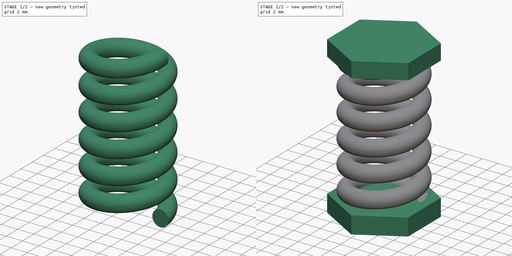
[diagram: build sequence overview — one tinted view per stage of 2, left to right]
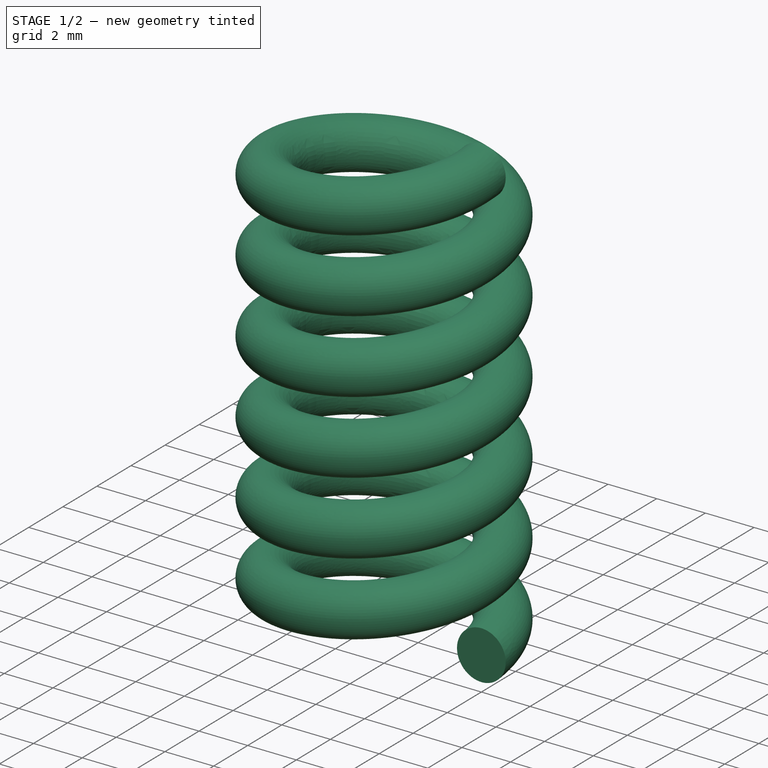
[diagram: stage 1 of 2 — iso view after this stage's code; geometry added in this stage tinted green]
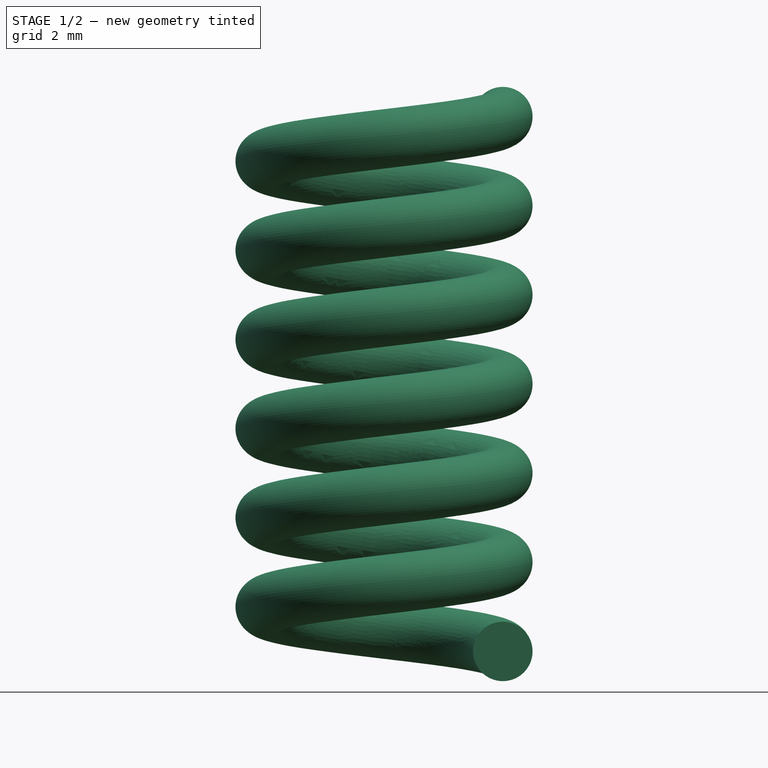
[diagram: stage 1 of 2 — front view after this stage's code; geometry added in this stage tinted green]
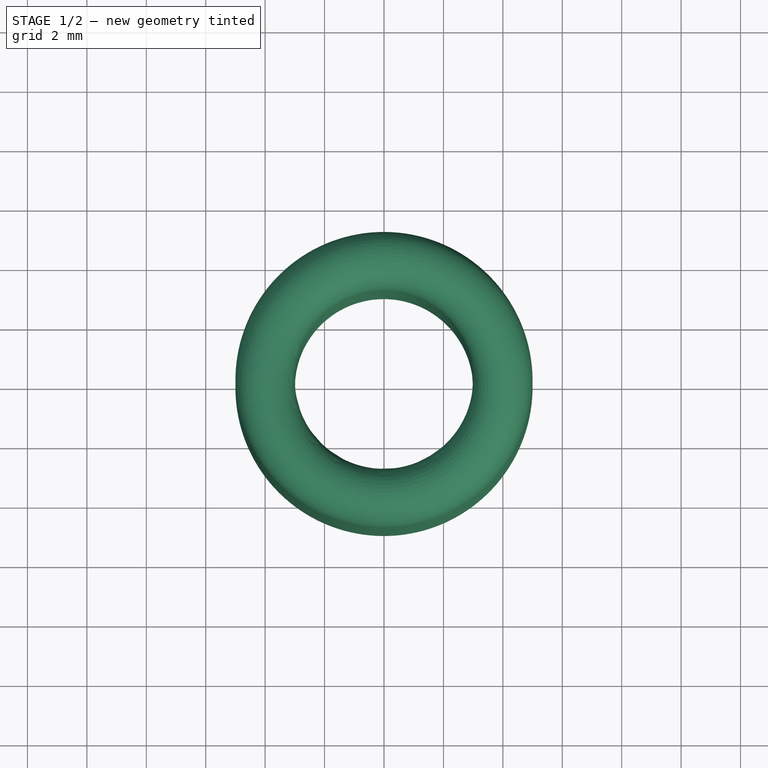
[diagram: stage 1 of 2 — top view after this stage's code; geometry added in this stage tinted green]
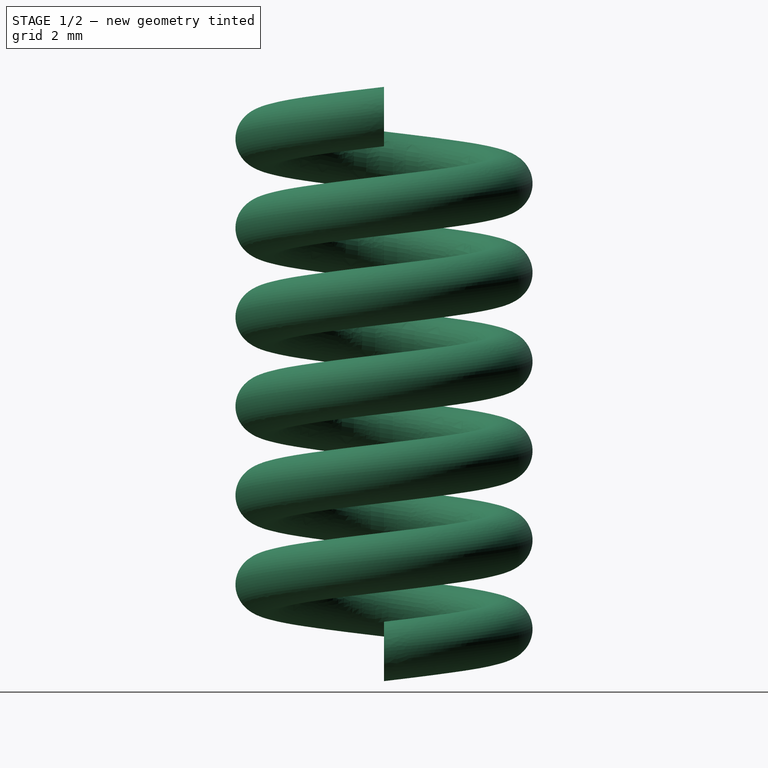
[diagram: stage 1 of 2 — right view after this stage's code; geometry added in this stage tinted green]
FCSTD DOCUMENT  (FreeCAD 0.21R33668 +26 (Git))
Label: Ressort-essai2
License: All rights reserved
LicenseURL: http://en.wikipedia.org/wiki/All_rights_reserved
objects: Sketcher::SketchObject×3, PartDesign::Pad×2, Part::Helix×1, Part::Sweep×1, PartDesign::FeatureBase×1, PartDesign::Body×1
note: 11 computed .brp shape members not serialized (recipe doc carries the construction recipe); baked Part::Feature solids carry a one-line shape summary decoded from their .brp

FEATURE [Part::Helix] Helix  label="Hélice"
  Angle = 0
  AttacherType = Attacher::AttachEngine3D
  Height = 18
  LocalCoord = 0
  Pitch = 3
  Radius = 4
  SegmentLength = 0
  Style = 1
FEATURE [Sketcher::SketchObject] Sketch  label="Profile"
  FullyConstrained = true
  MapMode = 5
  Placement = pos=(0,0,0) rot=(1,0,0;1.5708rad)
  Support = -> [XZ_Plane]
  sketch-geometry (1):
    g0: Circle CenterX=4 CenterY=0 CenterZ=0 NormalX=0 NormalY=0 NormalZ=1 AngleXU=0 Radius=1
  constraints (3):
    c: PointOnObject(g0,g-1)
    c: Radius(g0) = 1
    c: DistanceX(g-1,g0) = 4
FEATURE [Part::Sweep] Sweep  label="Hélice001"
  Frenet = true
  Sections = -> [Sketch]
  Solid = true
  Spine = -> Helix [Edge1]
  Transition = 1
FEATURE [Sketcher::SketchObject] Sketch001
  FullyConstrained = true
  MapMode = 5
  Support = -> [XY_Plane]
  sketch-geometry (7):
    g0: LineSegment StartX=5.19615 StartY=3 StartZ=0 EndX=0 EndY=6 EndZ=0
    g1: LineSegment StartX=0 StartY=6 StartZ=0 EndX=-5.19615 EndY=3 EndZ=0
    g2: LineSegment StartX=-5.19615 StartY=3 StartZ=0 EndX=-5.19615 EndY=-3 EndZ=0
    g3: LineSegment StartX=-5.19615 StartY=-3 StartZ=0 EndX=0 EndY=-6 EndZ=0
    g4: LineSegment StartX=0 StartY=-6 StartZ=0 EndX=5.19615 EndY=-3 EndZ=0
    g5: LineSegment StartX=5.19615 StartY=-3 StartZ=0 EndX=5.19615 EndY=3 EndZ=0
    g6: Circle CenterX=0 CenterY=0 CenterZ=0 NormalX=0 NormalY=0 NormalZ=1 AngleXU=0 Radius=6
  constraints (16):
    c: Coincident(g0,g1)
    c: Coincident(g1,g2)
    c: Coincident(g2,g3)
    c: Coincident(g3,g4)
    c: Coincident(g4,g5)
    c: Coincident(g5,g0)
    c: Equal(g0, g1-g5) x5
    c: PointOnObject(g0,g6)
    c: PointOnObject(g1,g6)
    c: PointOnObject(g2,g6)
    c: PointOnObject(g3,g6)
    c: PointOnObject(g4,g6)
    c: PointOnObject(g5,g6)
    c: Coincident(g6,g-1)
    c: PointOnObject(g0,g-2)
    c: DistanceY(g6,g0) = 6
FEATURE [Sketcher::SketchObject] Sketch002
  FullyConstrained = false
  MapMode = 5
  Placement = pos=(-5,-1.63078e-07,18) rot=(0,1,0;3.14159rad)
  sketch-geometry (7):
    g0: LineSegment StartX=-5.02 StartY=-6 StartZ=0 EndX=0.186153 EndY=-3.01732 EndZ=0
    g1: LineSegment StartX=0.186153 StartY=-3.01732 StartZ=0 EndX=0.206152 EndY=2.98268 EndZ=0
    g2: LineSegment StartX=0.206152 StartY=2.98268 StartZ=0 EndX=-4.98 EndY=6 EndZ=0
    g3: LineSegment StartX=-4.98 StartY=6 StartZ=0 EndX=-10.1862 EndY=3.01732 EndZ=0
    g4: LineSegment StartX=-10.1862 StartY=3.01732 StartZ=0 EndX=-10.2062 EndY=-2.98268 EndZ=0
    g5: LineSegment StartX=-10.2062 StartY=-2.98268 StartZ=0 EndX=-5.02 EndY=-6 EndZ=0
    g6: Circle CenterX=-5 CenterY=0 CenterZ=0 NormalX=0 NormalY=0 NormalZ=1 AngleXU=0 Radius=6.00003
  constraints (16):
    c: Coincident(g0,g1)
    c: Coincident(g1,g2)
    c: Coincident(g2,g3)
    c: Coincident(g3,g4)
    c: Coincident(g4,g5)
    c: Coincident(g5,g0)
    c: Equal(g0, g1-g5) x5
    c: PointOnObject(g0,g6)
    c: PointOnObject(g1,g6)
    c: PointOnObject(g2,g6)
    c: PointOnObject(g3,g6)
    c: PointOnObject(g4,g6)
    c: PointOnObject(g5,g6)
    c: PointOnObject(g6,g-1)
    c: DistanceY(g0,g6) = 6
    c: DistanceX(g6,g-1) = 5
FEATURE [PartDesign::FeatureBase] BaseFeature
  BaseFeature = -> Sweep
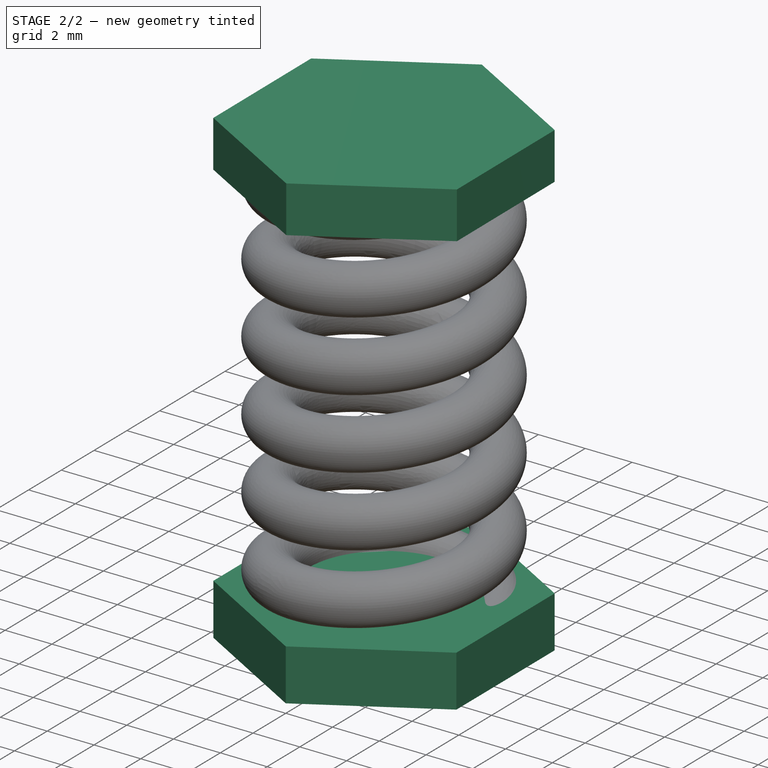
[diagram: stage 2 of 2 — iso view after this stage's code; geometry added in this stage tinted green]
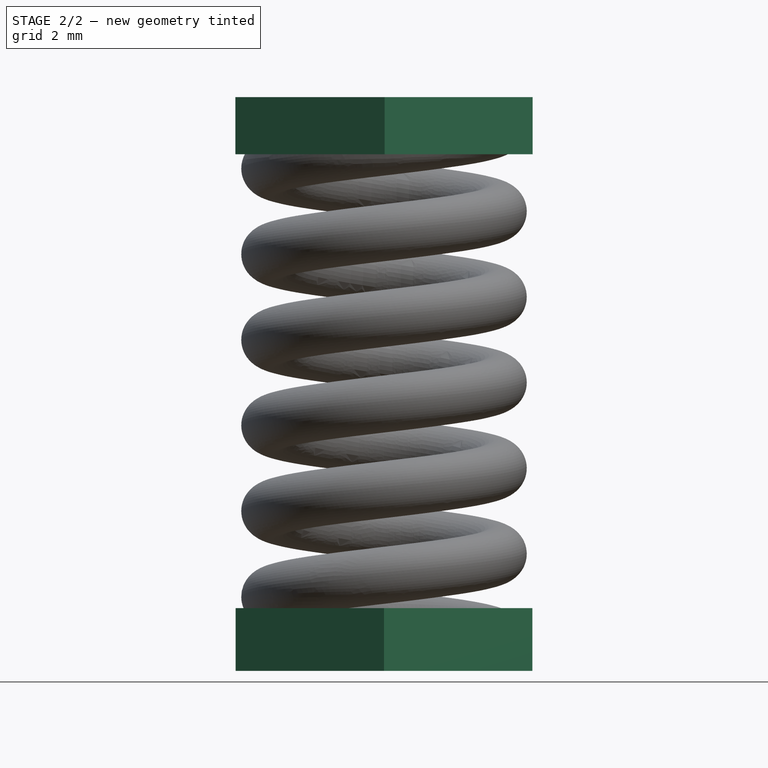
[diagram: stage 2 of 2 — front view after this stage's code; geometry added in this stage tinted green]
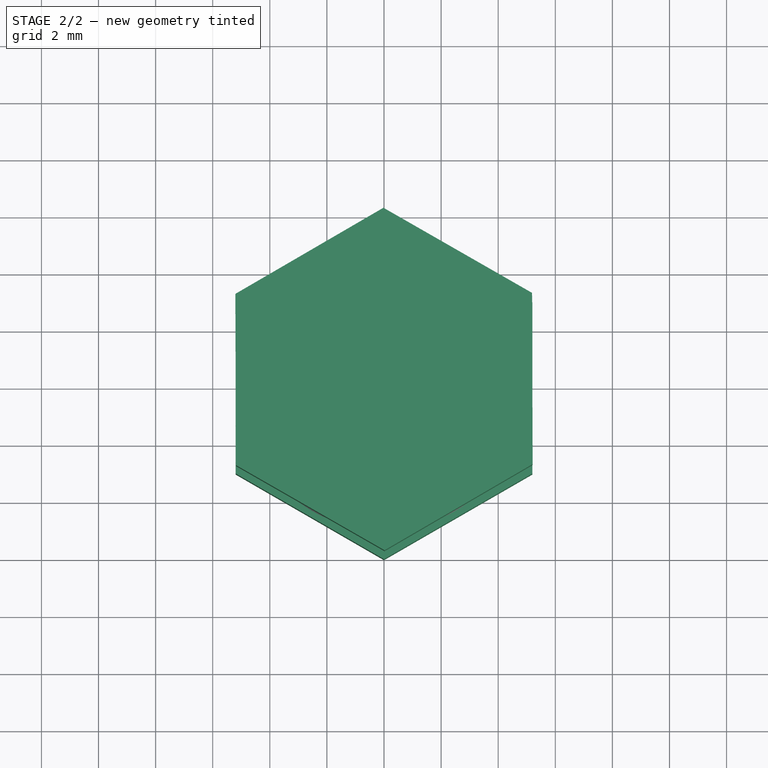
[diagram: stage 2 of 2 — top view after this stage's code; geometry added in this stage tinted green]
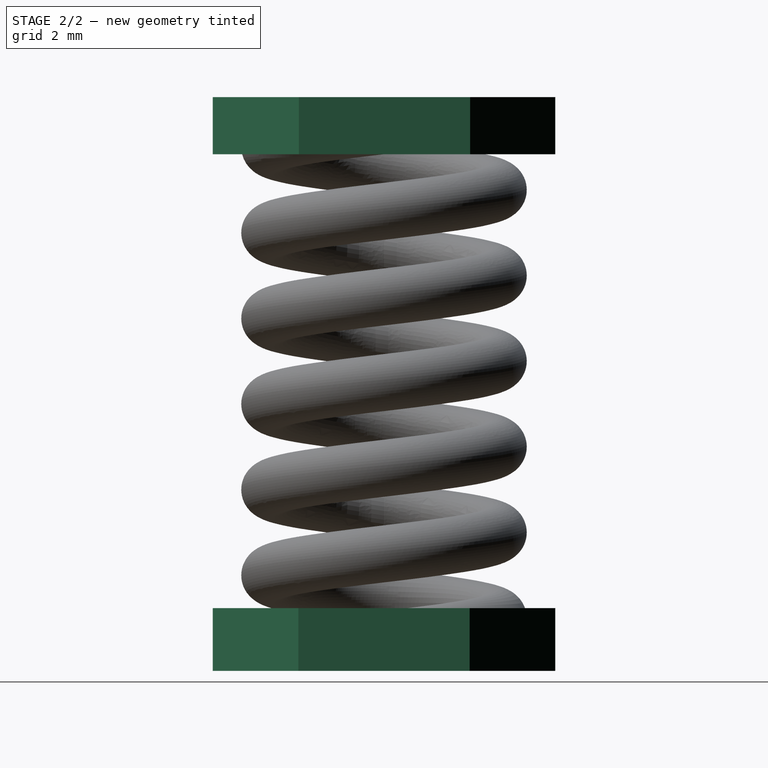
[diagram: stage 2 of 2 — right view after this stage's code; geometry added in this stage tinted green]
FEATURE [PartDesign::Pad] Pad
  BaseFeature = -> BaseFeature
  Direction = (0,0,1)
  Length = 2.2
  Length2 = 10
  Midplane = true
  Profile = -> Sketch001
  ReferenceAxis = -> Sketch001 [N_Axis]
  Type = 0
FEATURE [PartDesign::Pad] Pad001
  BaseFeature = -> Pad
  Direction = (1.02465e-06,-1.5669e-12,-1)
  Length = 2
  Length2 = 10
  Midplane = true
  Profile = -> Sketch002
  ReferenceAxis = -> Sketch002 [N_Axis]
  Type = 0
FEATURE [PartDesign::Body] Body
  BaseFeature = -> Sweep
  Group = -> [BaseFeature,Sketch,Sketch001,Pad,Sketch002,Pad001]
  Origin = -> Origin
  Tip = -> Pad001
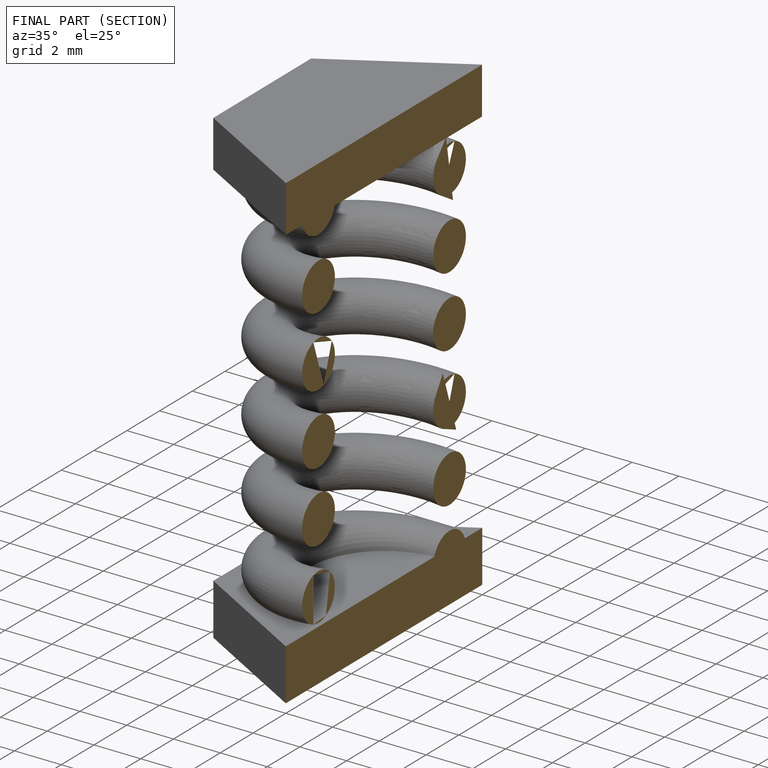
[diagram: finished part — half-section view (interior)]
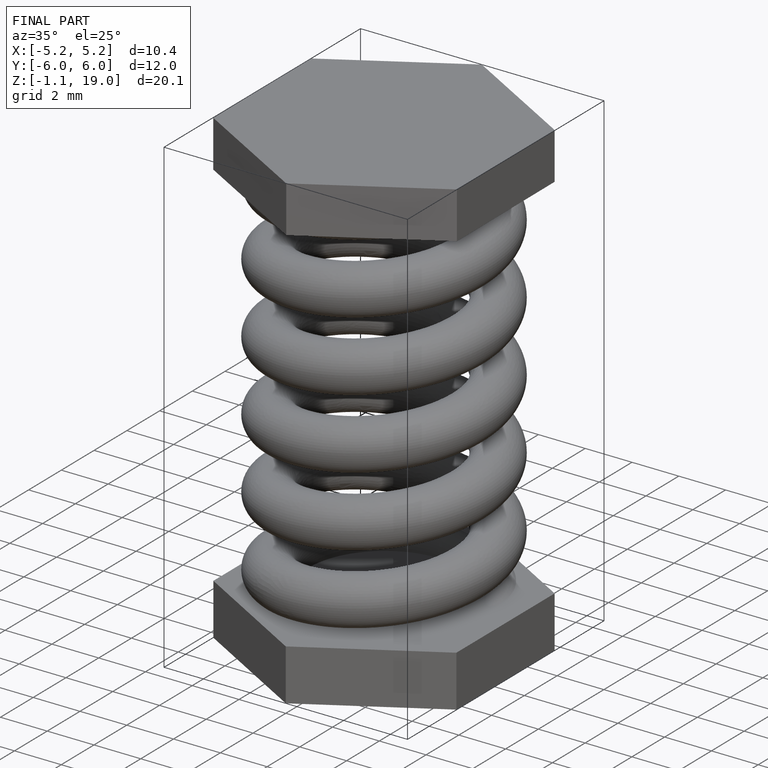
[diagram: finished part — iso view with bounding-box wireframe]
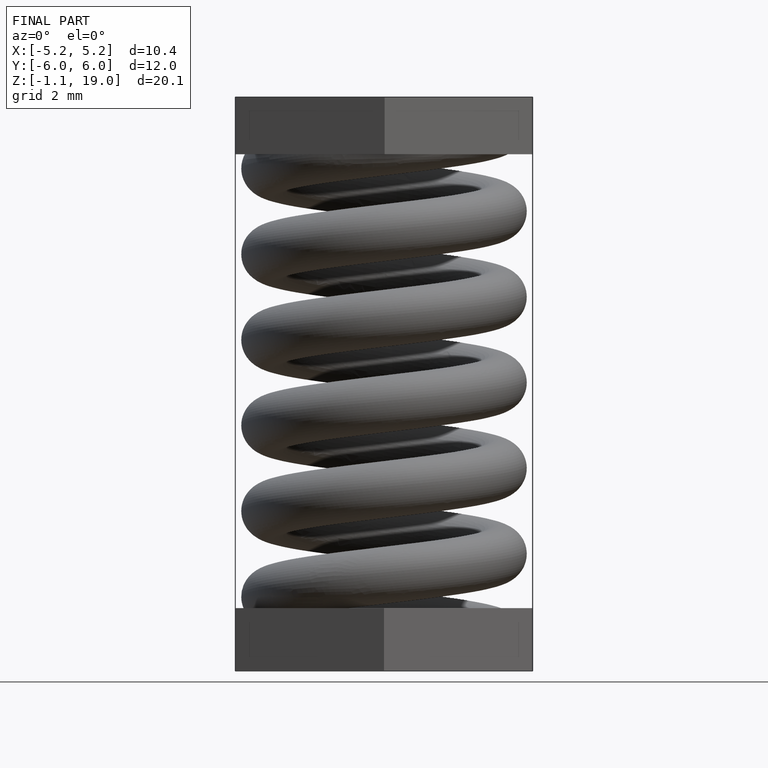
[diagram: finished part — front view with bounding-box wireframe]
